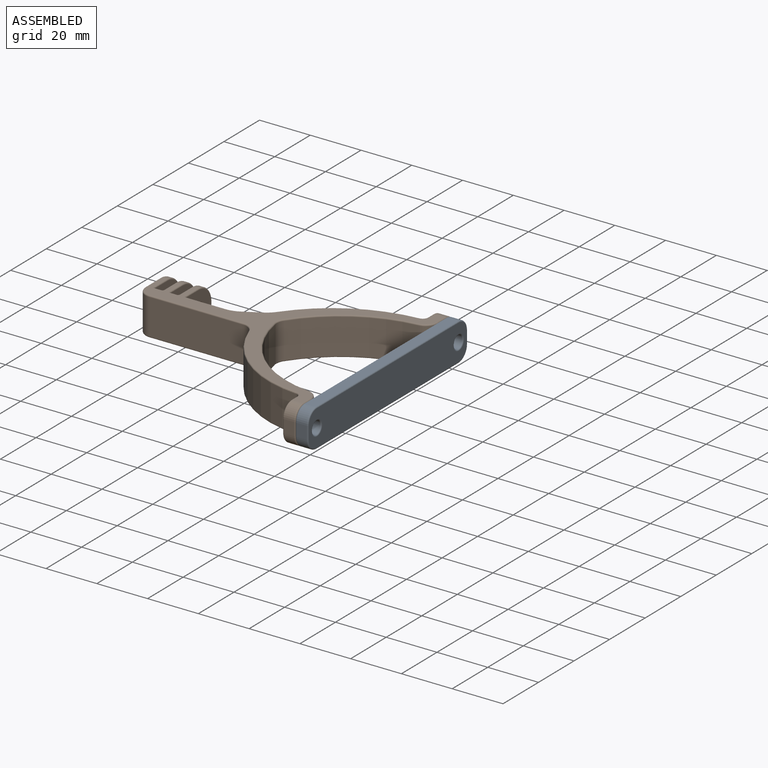
[diagram: assembled view]
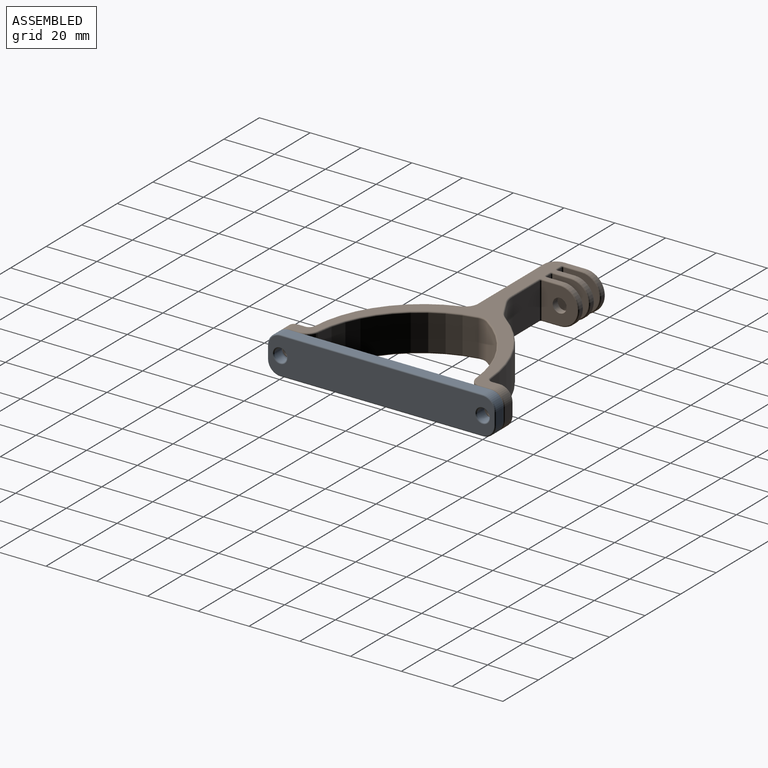
[diagram: assembled view, second angle]
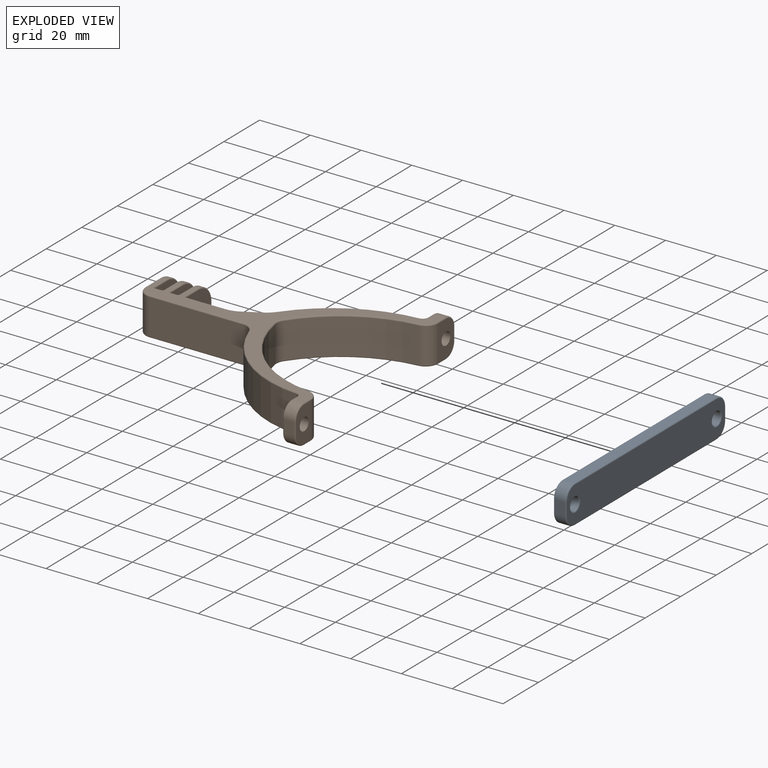
[diagram: exploded view]
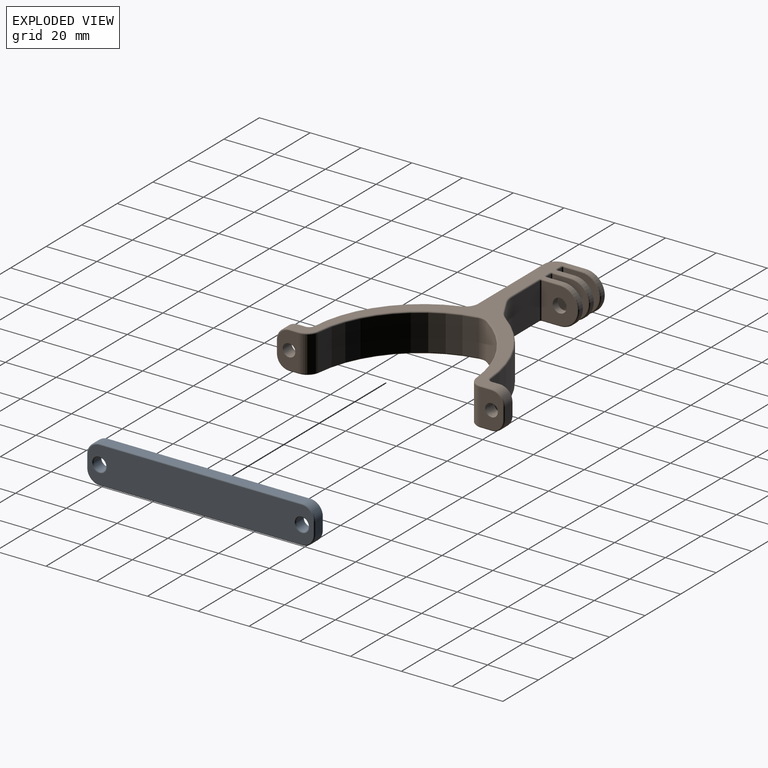
[diagram: exploded view, second angle]
ASSEMBLY  parts=2 mates=2
PART A: 32 faces, bbox 15.8x90.6x5 mm
  f0: plane 79.78x4mm, normal (1,0,0), area 319.1mm2, adj f1,f9,f18,f28
  f1: cylinder r=5mm len=5mm, axis (0,0,-1), area 31.4mm2, adj f0,f2,f16,f26
  f2: plane 5x4mm, normal (0,1,0), area 20mm2, adj f1,f3,f14,f24
  f3: cylinder r=5mm len=5mm, axis (0,0,-1), area 31.4mm2, adj f2,f4,f15,f25
  f4: plane 79.78x4mm, normal (-1,0,0), area 319.1mm2, adj f3,f5,f17,f27
  f5: cylinder r=5mm len=5mm, axis (0,0,-1), area 31.4mm2, adj f4,f6,f19,f29
  f6: plane 5x4mm, normal (0,-1,0), area 20mm2, adj f5,f9,f21,f31
  f7: cylinder r=2.5mm len=5mm, axis (0,0,-1), area 62.8mm2, adj f13,f23
  f8: cylinder r=2.5mm len=5mm, axis (0,0,-1), area 62.8mm2, adj f12,f22
  f9: cylinder r=5mm len=5mm, axis (0,0,-1), area 31.4mm2, adj f0,f6,f20,f30
  f10: plane 88.78x14mm, normal (0,0,1), area 1169mm2, adj f22,f23,f24,f25,f26,f27,f28,f29
  f11: plane 88.78x14mm, normal (0,0,-1), area 1169mm2, adj f12,f13,f14,f15,f16,f17,f18,f19
  f12: torus R=3mm, axis (0,0,1), area 13.2mm2, adj f8,f11
  f13: torus R=3mm, axis (0,0,1), area 13.2mm2, adj f7,f11
  f14: cylinder r=0.5mm len=5mm, axis (-1,0,0), area 3.9mm2, adj f2,f11,f15,f16
  f15: torus R=4.5mm, axis (0,0,1), area 5.9mm2, adj f3,f11,f14,f17
  f16: torus R=4.5mm, axis (0,0,1), area 5.9mm2, adj f1,f11,f14,f18
  f17: cylinder r=0.5mm len=79.78mm, axis (0,-1,0), area 62.7mm2, adj f4,f11,f15,f19
  f18: cylinder r=0.5mm len=79.78mm, axis (0,1,0), area 62.7mm2, adj f0,f11,f16,f20
  f19: torus R=4.5mm, axis (0,0,1), area 5.9mm2, adj f5,f11,f17,f21
  f20: torus R=4.5mm, axis (0,0,1), area 5.9mm2, adj f9,f11,f18,f21
  f21: cylinder r=0.5mm len=5mm, axis (1,0,0), area 3.9mm2, adj f6,f11,f19,f20
  f22: torus R=3mm, axis (0,0,1), area 13.2mm2, adj f8,f10
  f23: torus R=3mm, axis (0,0,1), area 13.2mm2, adj f7,f10
  f24: cylinder r=0.5mm len=5mm, axis (1,0,0), area 3.9mm2, adj f2,f10,f25,f26
  f25: torus R=4.5mm, axis (0,0,1), area 5.9mm2, adj f3,f10,f24,f27
  f26: torus R=4.5mm, axis (0,0,1), area 5.9mm2, adj f1,f10,f24,f28
  f27: cylinder r=0.5mm len=79.78mm, axis (0,1,0), area 62.7mm2, adj f4,f10,f25,f29
  f28: cylinder r=0.5mm len=79.78mm, axis (0,-1,0), area 62.7mm2, adj f0,f10,f26,f30
  f29: torus R=4.5mm, axis (0,0,1), area 5.9mm2, adj f5,f10,f27,f31
  f30: torus R=4.5mm, axis (0,0,1), area 5.9mm2, adj f9,f10,f28,f31
  f31: cylinder r=0.5mm len=5mm, axis (-1,0,0), area 3.9mm2, adj f6,f10,f29,f30
PART B: 133 faces, bbox 93.8x90.6x16.2 mm
  f0: plane 14x14mm, normal (1,0,0), area 151.2mm2, adj f27,f119,f120,f122,f123
  f1: plane 14x14mm, normal (-1,0,0), area 151.2mm2, adj f28,f127,f129,f130,f132
  f2: plane 14x14mm, normal (1,0,0), area 151.2mm2, adj f28,f105,f106,f108,f109
  f3: plane 14x14mm, normal (-1,0,0), area 151.2mm2, adj f26,f113,f115,f116,f118
  f4: plane 15.5x14mm, normal (-1,0,0), area 172.2mm2, adj f27,f32,f72,f74,f76
  f5: plane 92x79.78mm, normal (0,0,-1), area 881.6mm2, adj f23,f24,f25,f35,f36,f44,f45,f46
  f6: plane 14x14mm, normal (1,0,0), area 151.2mm2, adj f26,f83,f86,f88,f89
  f7: plane 92x79.78mm, normal (0,0,1), area 881.6mm2, adj f23,f24,f25,f37,f38,f55,f57,f59
  f8: plane 14x2.45mm, normal (0,1,0), area 34.3mm2, adj f109,f110,f114,f115
  f9: plane 14x2.45mm, normal (0,1,0), area 34.3mm2, adj f123,f124,f128,f129
  f10: cylinder r=55mm len=40.49mm, axis (0,0,-1), area 668.4mm2, adj f39,f42,f92,f101
  f11: plane 14x6.61mm, normal (-0.49,0.87,0), area 105.9mm2, adj f39,f40,f87,f97
  f12: plane 15.47x14mm, normal (0,1,0), area 216.6mm2, adj f40,f82,f88,f93
  f13: plane 36.79x14mm, normal (0,-1,0), area 515mm2, adj f32,f41,f68,f80
  f14: cylinder r=45mm len=39.62mm, axis (0,0,-1), area 738.1mm2, adj f41,f43,f64,f79
  f15: plane 14x7.59mm, normal (-1,0,0), area 77.9mm2, adj f30,f43,f67,f69,f71,f73,f75
  f16: plane 5x4mm, normal (0,-1,0), area 20mm2, adj f35,f37,f56,f71
  f17: plane 14x8.34mm, normal (1,0,0), area 88.5mm2, adj f30,f31,f52,f54,f56,f58,f60
  f18: cylinder r=43.3mm len=38.24mm, axis (0,0,-1), area 790.3mm2, adj f31,f34,f48,f63
  f19: cylinder r=50.64mm len=37.38mm, axis (0,0,-1), area 627.7mm2, adj f33,f34,f44,f59
  f20: plane 14x8.81mm, normal (1,0,0), area 95mm2, adj f29,f33,f47,f49,f51,f53,f55
  f21: plane 5x4mm, normal (0,1,0), area 20mm2, adj f36,f38,f51,f100
  f22: plane 14x7.61mm, normal (-1,0,0), area 78.1mm2, adj f29,f42,f96,f98,f100,f102,f104
  f23: cylinder r=7.5mm len=15mm, axis (-1,0,0), area 40.1mm2, adj f5,f7,f86,f116
  f24: cylinder r=7.5mm len=15mm, axis (-1,0,0), area 40.1mm2, adj f5,f7,f106,f130
  f25: cylinder r=7.5mm len=15mm, axis (-1,0,0), area 40.1mm2, adj f5,f7,f74,f120
  f26: cylinder r=2.75mm len=5.5mm, axis (-1,0,0), area 46.7mm2, adj f3,f6
  f27: cylinder r=2.75mm len=5.5mm, axis (-1,0,0), area 46.7mm2, adj f0,f4
  f28: cylinder r=2.75mm len=5.5mm, axis (-1,0,0), area 46.7mm2, adj f1,f2
  f29: cylinder r=2.5mm len=5mm, axis (-1,0,0), area 78.5mm2, adj f20,f22
  f30: cylinder r=2.5mm len=5mm, axis (-1,0,0), area 78.5mm2, adj f15,f17
  f31: cylinder r=5mm len=14mm, axis (0,0,-1), area 102.7mm2, adj f17,f18,f50,f62
  f32: cylinder r=5mm len=14mm, axis (0,0,-1), area 110mm2, adj f4,f13,f70,f78
  f33: cylinder r=5mm len=14mm, axis (0,0,-1), area 103.7mm2, adj f19,f20,f45,f57
  f34: cylinder r=5mm len=14mm, axis (0,0,1), area 53.1mm2, adj f18,f19,f46,f61
  f35: cylinder r=5mm len=5mm, axis (1,0,0), area 31.4mm2, adj f5,f16,f54,f73
  f36: cylinder r=5mm len=5mm, axis (-1,0,0), area 31.4mm2, adj f5,f21,f49,f102
  f37: cylinder r=5mm len=5mm, axis (-1,0,0), area 31.4mm2, adj f7,f16,f58,f69
  f38: cylinder r=5mm len=5mm, axis (1,0,0), area 31.4mm2, adj f7,f21,f53,f98
  f39: cylinder r=10mm len=14mm, axis (0,0,-1), area 60.5mm2, adj f10,f11,f90,f99
  f40: cylinder r=10mm len=14mm, axis (0,0,1), area 71mm2, adj f11,f12,f84,f95
  f41: cylinder r=5mm len=14mm, axis (0,0,-1), area 86.5mm2, adj f13,f14,f66,f81
  f42: cylinder r=2mm len=14mm, axis (0,0,-1), area 42mm2, adj f10,f22,f94,f103
  f43: cylinder r=2mm len=14mm, axis (0,0,-1), area 42.2mm2, adj f14,f15,f65,f77
  f44: torus R=51.14mm, axis (0,0,1), area 35.3mm2, adj f5,f19,f45,f46
  f45: torus R=4.5mm, axis (0,0,1), area 5.6mm2, adj f5,f33,f44,f47
  f46: torus R=5.5mm, axis (0,0,1), area 3.1mm2, adj f5,f34,f44,f48
  f47: cylinder r=0.5mm len=4.31mm, axis (0,1,0), area 3.4mm2, adj f5,f20,f45,f49
  f48: torus R=43.8mm, axis (0,0,1), area 44.5mm2, adj f5,f18,f46,f50
  f49: torus R=4.5mm, axis (-1,0,0), area 5.9mm2, adj f20,f36,f47,f51
  f50: torus R=4.5mm, axis (0,0,1), area 5.6mm2, adj f5,f31,f48,f52
  f51: cylinder r=0.5mm len=5mm, axis (0,0,-1), area 3.9mm2, adj f20,f21,f49,f53
  f52: cylinder r=0.5mm len=3.84mm, axis (0,1,0), area 3mm2, adj f5,f17,f50,f54
  f53: torus R=4.5mm, axis (-1,0,0), area 5.9mm2, adj f20,f38,f51,f55
  f54: torus R=4.5mm, axis (-1,0,0), area 5.9mm2, adj f17,f35,f52,f56
  f55: cylinder r=0.5mm len=4.31mm, axis (0,-1,0), area 3.4mm2, adj f7,f20,f53,f57
  f56: cylinder r=0.5mm len=5mm, axis (0,0,-1), area 3.9mm2, adj f16,f17,f54,f58
  f57: torus R=4.5mm, axis (0,0,1), area 5.6mm2, adj f7,f33,f55,f59
  f58: torus R=4.5mm, axis (-1,0,0), area 5.9mm2, adj f17,f37,f56,f60
  f59: torus R=51.14mm, axis (0,0,1), area 35.3mm2, adj f7,f19,f57,f61
  f60: cylinder r=0.5mm len=3.84mm, axis (0,-1,0), area 3mm2, adj f7,f17,f58,f62
  f61: torus R=5.5mm, axis (0,0,1), area 3.1mm2, adj f7,f34,f59,f63
  f62: torus R=4.5mm, axis (0,0,1), area 5.6mm2, adj f7,f31,f60,f63
  f63: torus R=43.8mm, axis (0,0,1), area 44.5mm2, adj f7,f18,f61,f62
  f64: torus R=44.5mm, axis (0,0,1), area 41.2mm2, adj f7,f14,f65,f66
  f65: torus R=2.5mm, axis (0,0,1), area 2.6mm2, adj f7,f43,f64,f67
  f66: torus R=5.5mm, axis (0,0,1), area 5mm2, adj f7,f41,f64,f68
  f67: cylinder r=0.5mm len=3.09mm, axis (0,1,0), area 2.4mm2, adj f7,f15,f65,f69
  f68: cylinder r=0.5mm len=36.79mm, axis (-1,0,0), area 28.9mm2, adj f7,f13,f66,f70
  f69: torus R=4.5mm, axis (1,0,0), area 5.9mm2, adj f15,f37,f67,f71
  f70: torus R=4.5mm, axis (0,0,1), area 5.9mm2, adj f7,f32,f68,f72
  f71: cylinder r=0.5mm len=5mm, axis (0,0,-1), area 3.9mm2, adj f15,f16,f69,f73
  f72: cylinder r=0.5mm len=8.5mm, axis (0,1,0), area 6.7mm2, adj f4,f7,f70,f74
  f73: torus R=4.5mm, axis (1,0,0), area 5.9mm2, adj f15,f35,f71,f75
  f74: torus R=7mm, axis (1,0,0), area 18.1mm2, adj f4,f25,f72,f76
  f75: cylinder r=0.5mm len=3.09mm, axis (0,-1,0), area 2.4mm2, adj f5,f15,f73,f77
  f76: cylinder r=0.5mm len=8.5mm, axis (0,-1,0), area 6.7mm2, adj f4,f5,f74,f78
  f77: torus R=2.5mm, axis (0,0,1), area 2.6mm2, adj f5,f43,f75,f79
  f78: torus R=4.5mm, axis (0,0,1), area 5.9mm2, adj f5,f32,f76,f80
  f79: torus R=44.5mm, axis (0,0,1), area 41.2mm2, adj f5,f14,f77,f81
  f80: cylinder r=0.5mm len=36.79mm, axis (1,0,0), area 28.9mm2, adj f5,f13,f78,f81
  f81: torus R=5.5mm, axis (0,0,1), area 5mm2, adj f5,f41,f79,f80
  f82: cylinder r=0.5mm len=15.47mm, axis (1,0,0), area 12.2mm2, adj f7,f12,f84,f85
  f83: cylinder r=0.5mm len=7mm, axis (0,-1,0), area 5.5mm2, adj f6,f7,f85,f86
  f84: torus R=10.5mm, axis (0,0,1), area 4.1mm2, adj f7,f40,f82,f87
  f85: torus R=1mm, axis (0,0,1), area 0.8mm2, adj f7,f82,f83,f88
  f86: torus R=7mm, axis (1,0,0), area 18.1mm2, adj f6,f23,f83,f89
  f87: cylinder r=0.5mm len=6.86mm, axis (0.87,0.49,0), area 5.9mm2, adj f7,f11,f84,f90
  f88: cylinder r=0.5mm len=14mm, axis (0,0,1), area 11mm2, adj f6,f12,f85,f91
  f89: cylinder r=0.5mm len=7mm, axis (0,1,0), area 5.5mm2, adj f5,f6,f86,f91
  f90: torus R=10.5mm, axis (0,0,1), area 3.5mm2, adj f7,f39,f87,f92
  f91: torus R=1mm, axis (0,0,1), area 0.8mm2, adj f5,f88,f89,f93
  f92: torus R=54.5mm, axis (0,0,1), area 37.4mm2, adj f7,f10,f90,f94
  f93: cylinder r=0.5mm len=15.47mm, axis (-1,0,0), area 12.2mm2, adj f5,f12,f91,f95
  f94: torus R=2.5mm, axis (0,0,1), area 2.6mm2, adj f7,f42,f92,f96
  f95: torus R=10.5mm, axis (0,0,1), area 4.1mm2, adj f5,f40,f93,f97
  f96: cylinder r=0.5mm len=3.11mm, axis (0,1,0), area 2.4mm2, adj f7,f22,f94,f98
  f97: cylinder r=0.5mm len=6.86mm, axis (-0.87,-0.49,0), area 5.9mm2, adj f5,f11,f95,f99
  f98: torus R=4.5mm, axis (1,0,0), area 5.9mm2, adj f22,f38,f96,f100
  f99: torus R=10.5mm, axis (0,0,1), area 3.5mm2, adj f5,f39,f97,f101
  f100: cylinder r=0.5mm len=5mm, axis (0,0,-1), area 3.9mm2, adj f21,f22,f98,f102
  f101: torus R=54.5mm, axis (0,0,1), area 37.4mm2, adj f5,f10,f99,f103
  f102: torus R=4.5mm, axis (1,0,0), area 5.9mm2, adj f22,f36,f100,f104
  f103: torus R=2.5mm, axis (0,0,1), area 2.6mm2, adj f5,f42,f101,f104
  f104: cylinder r=0.5mm len=3.11mm, axis (0,-1,0), area 2.4mm2, adj f5,f22,f102,f103
  f105: cylinder r=0.5mm len=7mm, axis (0,1,0), area 5.5mm2, adj f2,f5,f106,f107
  f106: torus R=7mm, axis (1,0,0), area 18.1mm2, adj f2,f24,f105,f108
  f107: torus R=1mm, axis (0,0,1), area 0.8mm2, adj f5,f105,f109,f110
  f108: cylinder r=0.5mm len=7mm, axis (0,-1,0), area 5.5mm2, adj f2,f7,f106,f111
  f109: cylinder r=0.5mm len=14mm, axis (0,0,1), area 11mm2, adj f2,f8,f107,f111
  f110: cylinder r=0.5mm len=2.45mm, axis (-1,0,0), area 1.9mm2, adj f5,f8,f107,f112
  f111: torus R=1mm, axis (0,0,1), area 0.8mm2, adj f7,f108,f109,f114
  f112: torus R=1mm, axis (0,0,1), area 0.8mm2, adj f5,f110,f113,f115
  f113: cylinder r=0.5mm len=7mm, axis (0,-1,0), area 5.5mm2, adj f3,f5,f112,f116
  f114: cylinder r=0.5mm len=2.45mm, axis (1,0,0), area 1.9mm2, adj f7,f8,f111,f117
  f115: cylinder r=0.5mm len=14mm, axis (0,0,-1), area 11mm2, adj f3,f8,f112,f117
  f116: torus R=7mm, axis (1,0,0), area 18.1mm2, adj f3,f23,f113,f118
  f117: torus R=1mm, axis (0,0,1), area 0.8mm2, adj f7,f114,f115,f118
  f118: cylinder r=0.5mm len=7mm, axis (0,1,0), area 5.5mm2, adj f3,f7,f116,f117
  f119: cylinder r=0.5mm len=7mm, axis (0,1,0), area 5.5mm2, adj f0,f5,f120,f121
  f120: torus R=7mm, axis (1,0,0), area 18.1mm2, adj f0,f25,f119,f122
  f121: torus R=1mm, axis (0,0,1), area 0.8mm2, adj f5,f119,f123,f124
  f122: cylinder r=0.5mm len=7mm, axis (0,-1,0), area 5.5mm2, adj f0,f7,f120,f125
  f123: cylinder r=0.5mm len=14mm, axis (0,0,1), area 11mm2, adj f0,f9,f121,f125
  f124: cylinder r=0.5mm len=2.45mm, axis (-1,0,0), area 1.9mm2, adj f5,f9,f121,f126
  f125: torus R=1mm, axis (0,0,1), area 0.8mm2, adj f7,f122,f123,f128
  f126: torus R=1mm, axis (0,0,1), area 0.8mm2, adj f5,f124,f127,f129
  f127: cylinder r=0.5mm len=7mm, axis (0,-1,0), area 5.5mm2, adj f1,f5,f126,f130
  f128: cylinder r=0.5mm len=2.45mm, axis (1,0,0), area 1.9mm2, adj f7,f9,f125,f131
  f129: cylinder r=0.5mm len=14mm, axis (0,0,-1), area 11mm2, adj f1,f9,f126,f131
  f130: torus R=7mm, axis (1,0,0), area 18.1mm2, adj f1,f24,f127,f132
  f131: torus R=1mm, axis (0,0,1), area 0.8mm2, adj f7,f128,f129,f132
  f132: cylinder r=0.5mm len=7mm, axis (0,1,0), area 5.5mm2, adj f1,f7,f130,f131
PLACE A rot(axis=(0,1,0),90deg) t=(16.7,-23.6,50.87)mm
PLACE B t=(18.7,-11.8,35.87)mm
MATE cylindrical B.f30 <-> A.f8  axis (-1,0,0) through (16.7,-18.6,43.37)mm
MATE planar A.f8 <-> B.f30  axis (-1,0,0) through (16.7,-18.6,43.37)mm
